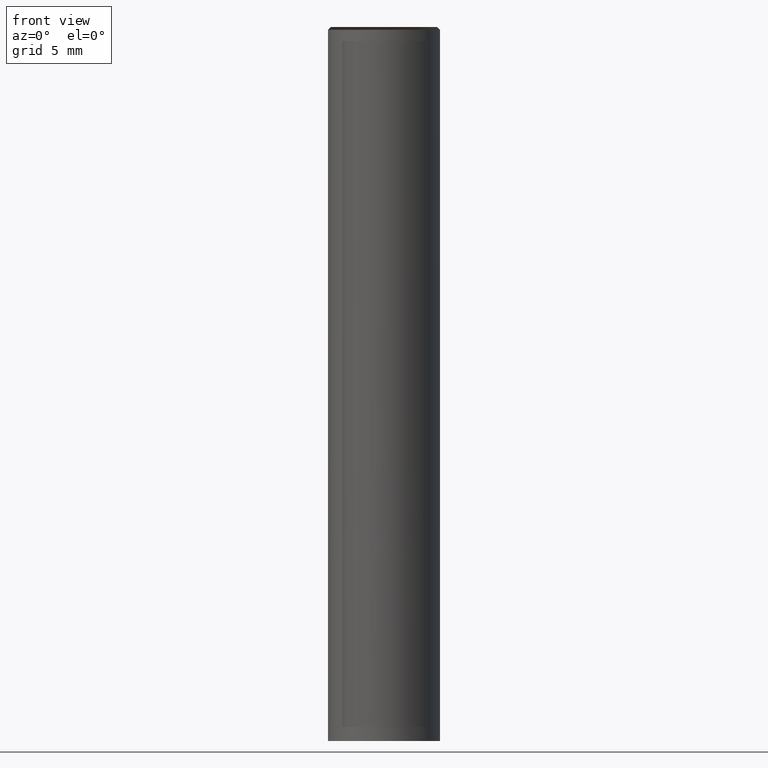
[diagram: clean part render]
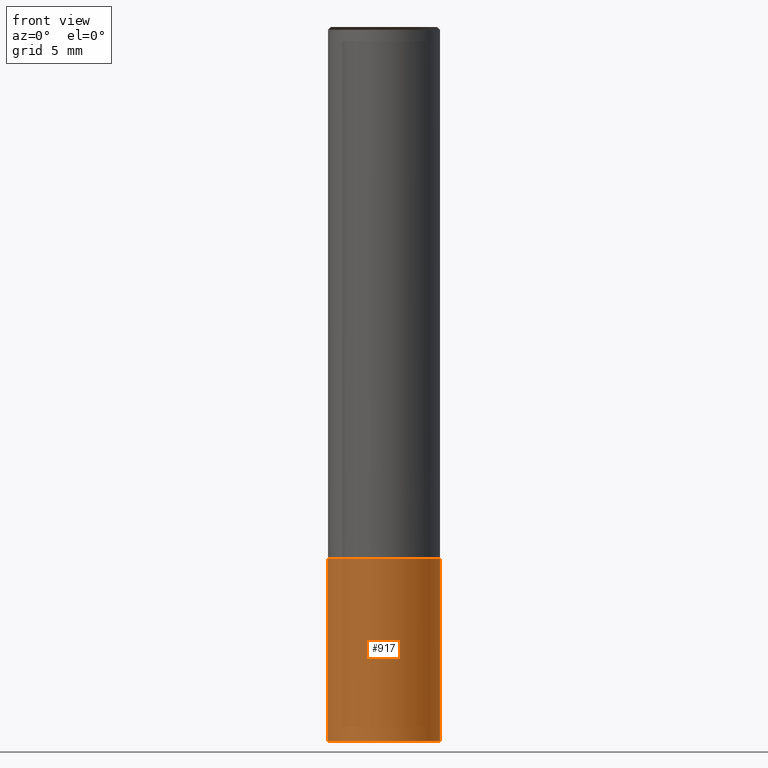
[diagram: same view with one face highlighted and labeled with its STEP entity id]
A machine part, front view. The second image highlights one B-rep face of the part: STEP entity #917.
In plain terms, the highlighted face is a freeform B-spline surface patch.
Its self-contained STEP definition (entity closure, byte-faithful):
#109=CARTESIAN_POINT('',(0.0,-4.0,-19.0));
#290=CARTESIAN_POINT('',(4.0,0.0,-19.0));
#652=CARTESIAN_POINT('',(-4.0,0.0,-19.0));
#787=CARTESIAN_POINT('',(4.0,0.0,-6.0));
#791=CARTESIAN_POINT('',(-4.0,0.0,-6.0));
#793=CARTESIAN_POINT('',(-4.0,-4.0,-19.0));
#794=CARTESIAN_POINT('',(4.0,-4.0,-19.0));
#795=CARTESIAN_POINT('',(-4.0,-4.0,-6.0));
#796=CARTESIAN_POINT('',(0.0,-4.0,-6.0));
#797=CARTESIAN_POINT('',(4.0,-4.0,-6.0));
#898=(
BOUNDED_SURFACE()
B_SPLINE_SURFACE(1,2,(
(#652,#793,#109,#794,#290),
(#791,#795,#796,#797,#787)
), .UNSPECIFIED.,.F.,.F.,.F.)
B_SPLINE_SURFACE_WITH_KNOTS((2,2),(3,2,3),(
0.0,1.0),(
0.0,0.5,1.0), .UNSPECIFIED.)
GEOMETRIC_REPRESENTATION_ITEM()
RATIONAL_B_SPLINE_SURFACE(((1.0,0.707106781187,1.0,0.707106781187,1.0),
(1.0,0.707106781187,1.0,0.707106781187,1.0)
))
REPRESENTATION_ITEM('')
SURFACE()
);
#899=(
BOUNDED_CURVE()
B_SPLINE_CURVE(2,(#290,#794,#109,#793,#652),.UNSPECIFIED.,.F.,.F.)
B_SPLINE_CURVE_WITH_KNOTS((3,2,3),
(0.0,0.5,1.0),.UNSPECIFIED.)
CURVE()
GEOMETRIC_REPRESENTATION_ITEM()
RATIONAL_B_SPLINE_CURVE((1.0,0.707106781187,1.0,0.707106781187,1.0))
REPRESENTATION_ITEM('')
);
#900=(
BOUNDED_CURVE()
B_SPLINE_CURVE(1,(#652,#791),.UNSPECIFIED.,.F.,.F.)
B_SPLINE_CURVE_WITH_KNOTS((2,2),
(0.0,1.0),.UNSPECIFIED.)
CURVE()
GEOMETRIC_REPRESENTATION_ITEM()
RATIONAL_B_SPLINE_CURVE((1.0,1.0))
REPRESENTATION_ITEM('')
);
#901=(
BOUNDED_CURVE()
B_SPLINE_CURVE(2,(#791,#795,#796,#797,#787),.UNSPECIFIED.,.F.,.F.)
B_SPLINE_CURVE_WITH_KNOTS((3,2,3),
(0.0,0.5,1.0),.UNSPECIFIED.)
CURVE()
GEOMETRIC_REPRESENTATION_ITEM()
RATIONAL_B_SPLINE_CURVE((1.0,0.707106781187,1.0,0.707106781187,1.0))
REPRESENTATION_ITEM('')
);
#902=(
BOUNDED_CURVE()
B_SPLINE_CURVE(1,(#787,#290),.UNSPECIFIED.,.F.,.F.)
B_SPLINE_CURVE_WITH_KNOTS((2,2),
(0.0,1.0),.UNSPECIFIED.)
CURVE()
GEOMETRIC_REPRESENTATION_ITEM()
RATIONAL_B_SPLINE_CURVE((1.0,1.0))
REPRESENTATION_ITEM('')
);
#903=VERTEX_POINT('',#290);
#904=VERTEX_POINT('',#652);
#905=VERTEX_POINT('',#787);
#906=VERTEX_POINT('',#791);
#907=EDGE_CURVE('',#903,#904,#899,.T.);
#908=EDGE_CURVE('',#904,#906,#900,.T.);
#909=EDGE_CURVE('',#906,#905,#901,.T.);
#910=EDGE_CURVE('',#905,#903,#902,.T.);
#911=ORIENTED_EDGE('',*,*,#907,.T.);
#912=ORIENTED_EDGE('',*,*,#908,.T.);
#913=ORIENTED_EDGE('',*,*,#909,.T.);
#914=ORIENTED_EDGE('',*,*,#910,.T.);
#915=EDGE_LOOP('',(#911,#912,#913,#914));
#916=FACE_OUTER_BOUND('',#915,.T.);
#917=ADVANCED_FACE('',(#916),#898,.T.);